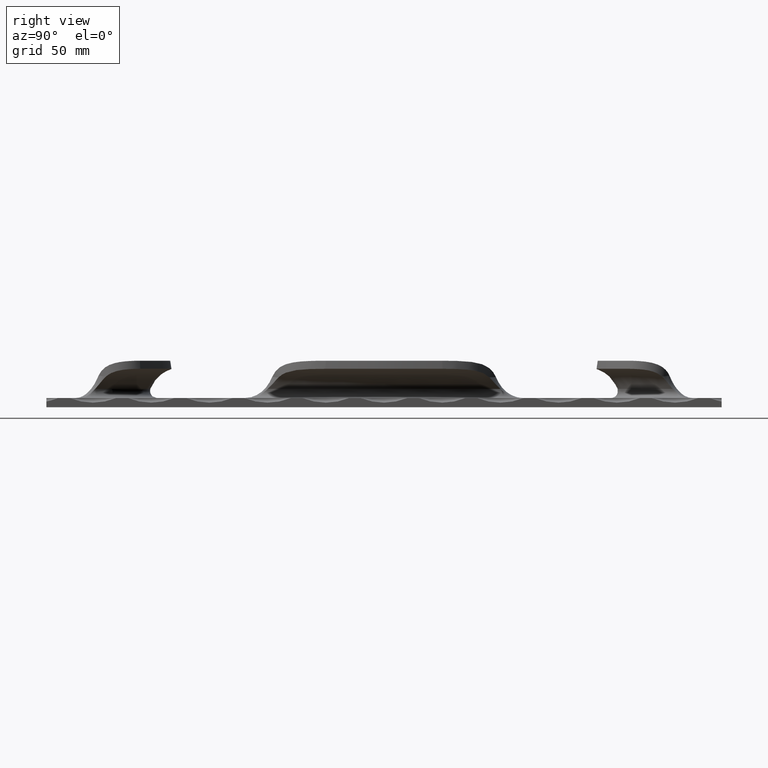
[diagram: clean part render]
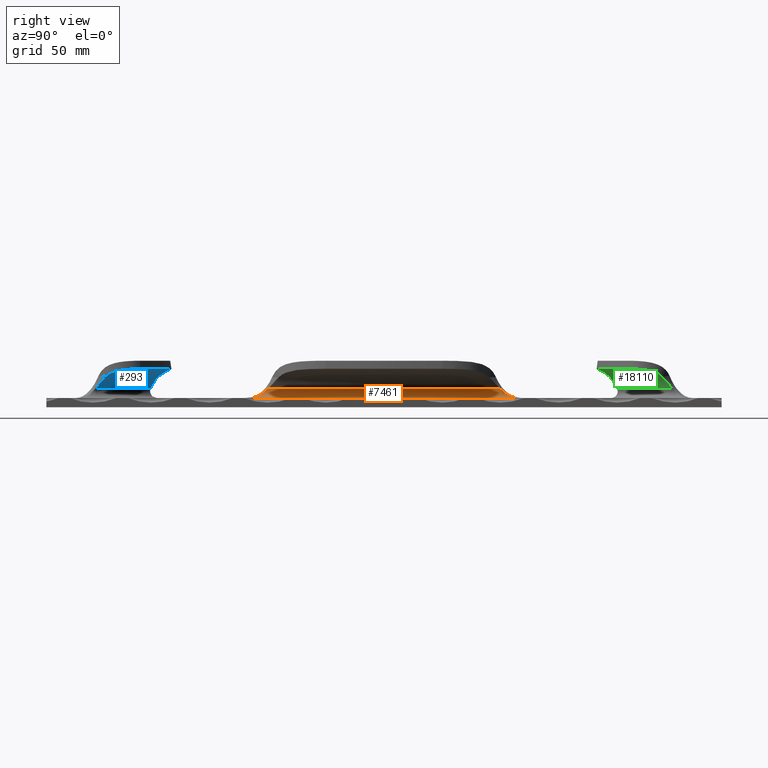
[diagram: same view with three faces highlighted in distinct colors, each labeled with its STEP entity id]
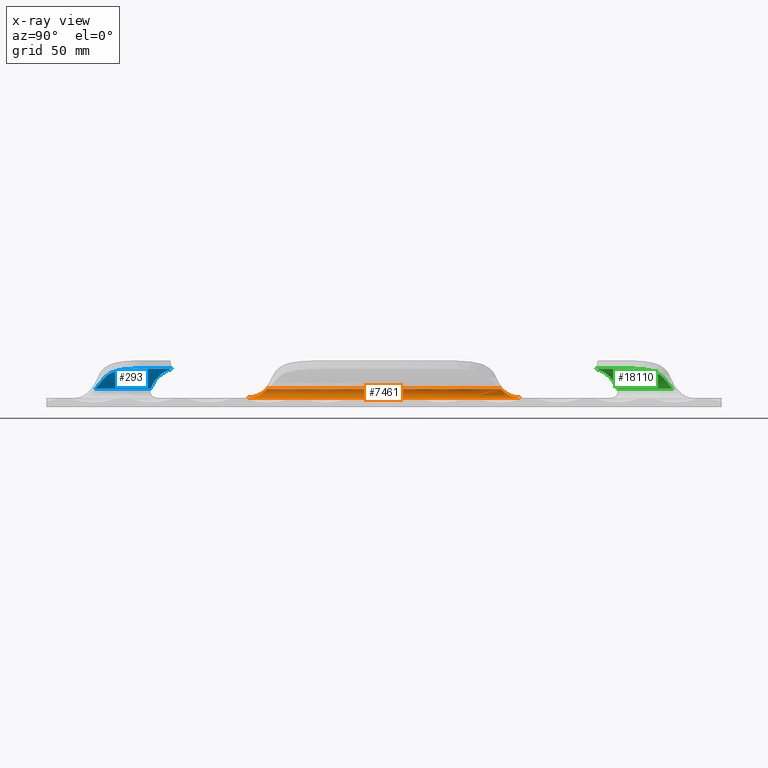
[diagram: x-ray of the same camera — body ghosted, the three highlighted faces saturated]
A machine part, right view with three faces highlighted in distinct colors.
The next image is the same camera in x-ray (body ghosted, the three faces saturated) — at least one of them is partly hidden behind the body in this view.
Their STEP definitions:

[orange] entity #7461 — the highlighted toroidal blend (fillet) surface has major radius 131.064 mm and minor (blend) radius 3 mm.
#127 = DIRECTION ( 'NONE',  ( -1.000000000000000000, 0.0000000000000000000, 0.0000000000000000000 ) ) ;
#1071 = VERTEX_POINT ( 'NONE', #16387 ) ;
#1298 = CARTESIAN_POINT ( 'NONE',  ( -109.9487694565426800, 93.00114658675498400, 6.211068984497527100 ) ) ;
#1388 = CARTESIAN_POINT ( 'NONE',  ( -109.7925697336179700, 203.4821386187641400, 4.000000000000000000 ) ) ;
#1767 = EDGE_CURVE ( 'NONE', #1071, #2663, #2790, .T. ) ;
#2262 = AXIS2_PLACEMENT_3D ( 'NONE', #7316, #13244, #7442 ) ;
#2526 = VERTEX_POINT ( 'NONE', #17365 ) ;
#2663 = VERTEX_POINT ( 'NONE', #6424 ) ;
#2790 = B_SPLINE_CURVE_WITH_KNOTS ( 'NONE', 3,
 ( #1388, #3081, #13195, #11580, #2877, #13012, #15936, #17408, #8757, #14957, #6247, #7567, #17878, #4852, #7693, #6177 ),
 .UNSPECIFIED., .F., .F.,
 ( 4, 2, 2, 2, 2, 2, 2, 4 ),
 ( -2.504480706129122600E-005, 0.001214967937322580000, 0.002454980681706451100, 0.003694993426090322900, 0.004935006170474193400, 0.006175018914858064300, 0.007415031659241937000, 0.009895057148009676200 ),
 .UNSPECIFIED. ) ;
#2863 = CARTESIAN_POINT ( 'NONE',  ( -110.1094335452938300, 91.97655657371902300, 5.540781994726332400 ) ) ;
#2877 = CARTESIAN_POINT ( 'NONE',  ( -110.0165907016635600, 201.4437447620452400, 4.199530309431489500 ) ) ;
#3081 = CARTESIAN_POINT ( 'NONE',  ( -109.8381287916579100, 203.0713192113741500, 4.000000000000026600 ) ) ;
#3957 = FACE_OUTER_BOUND ( 'NONE', #16346, .T. ) ;
#4083 = CARTESIAN_POINT ( 'NONE',  ( -109.9747677572980000, 88.15478835372461200, 4.125203686884558100 ) ) ;
#4192 = EDGE_CURVE ( 'NONE', #1071, #16741, #7061, .T. ) ;
#4304 = ORIENTED_EDGE ( 'NONE', *, *, #4192, .F. ) ;
#4420 = CARTESIAN_POINT ( 'NONE',  ( -110.1554957574202500, 90.88842433289886500, 4.969600187318780700 ) ) ;
#4852 = CARTESIAN_POINT ( 'NONE',  ( -109.6719382895446100, 196.0371663199425400, 6.937085417777591800 ) ) ;
#5765 = CARTESIAN_POINT ( 'NONE',  ( -227.0858352985343900, 145.0000000000001400, 7.933333333333354900 ) ) ;
#5798 = CARTESIAN_POINT ( 'NONE',  ( -108.9911194063887800, 95.07729017309769400, 7.933333333333354900 ) ) ;
#6177 = CARTESIAN_POINT ( 'NONE',  ( -108.9911194063887600, 194.9227098269025200, 7.933333333333354900 ) ) ;
#6247 = CARTESIAN_POINT ( 'NONE',  ( -110.1094242342021500, 198.0233475962338600, 5.540838988976712900 ) ) ;
#6424 = CARTESIAN_POINT ( 'NONE',  ( -108.9911194063887600, 194.9227098269025200, 7.933333333333354900 ) ) ;
#6761 = DIRECTION ( 'NONE',  ( -0.0000000000000000000, -0.0000000000000000000, -1.000000000000000000 ) ) ;
#7061 = CIRCLE ( 'NONE', #12340, 131.0643761069587200 ) ;
#7158 = CARTESIAN_POINT ( 'NONE',  ( -109.9077504274845700, 87.54368926932214400, 4.050220825247094100 ) ) ;
#7316 = CARTESIAN_POINT ( 'NONE',  ( -227.0858352985343900, 145.0000000000001400, 7.000000000000000000 ) ) ;
#7442 = DIRECTION ( 'NONE',  ( -1.000000000000000000, 0.0000000000000000000, 0.0000000000000000000 ) ) ;
#7461 = ADVANCED_FACE ( 'NONE', ( #3957 ), #17301, .F. ) ;
#7567 = CARTESIAN_POINT ( 'NONE',  ( -110.0165039693306100, 197.3347623122780300, 5.976252284737215700 ) ) ;
#7693 = CARTESIAN_POINT ( 'NONE',  ( -109.3918589508757600, 195.4614919107898200, 7.446627380563112000 ) ) ;
#8526 = CARTESIAN_POINT ( 'NONE',  ( -109.8847045615689500, 87.33860395236320100, 4.031361832666789300 ) ) ;
#8547 = EDGE_CURVE ( 'NONE', #2526, #2663, #17040, .T. ) ;
#8618 = CARTESIAN_POINT ( 'NONE',  ( -110.1495541473677100, 90.50764709866699300, 4.802435688702408000 ) ) ;
#8739 = CARTESIAN_POINT ( 'NONE',  ( -110.0165175128554300, 92.66516414711865900, 5.976202181689586700 ) ) ;
#8757 = CARTESIAN_POINT ( 'NONE',  ( -110.1554956483948900, 199.1114428546930500, 4.969661761979696600 ) ) ;
#9849 = CARTESIAN_POINT ( 'NONE',  ( -109.7925697336179700, 86.51786138123610200, 4.000000000000000000 ) ) ;
#10496 = B_SPLINE_CURVE_WITH_KNOTS ( 'NONE', 3,
 ( #5798, #17266, #15787, #1298, #8739, #2863, #14450, #4420, #8618, #11508, #18580, #12898, #4083, #7158, #8526, #18521, #12837, #9849 ),
 .UNSPECIFIED., .F., .F.,
 ( 4, 2, 2, 2, 2, 2, 2, 2, 4 ),
 ( 0.0000000000000000000, 0.002453533319369146100, 0.003680299979053718900, 0.004907066638738292200, 0.006133833298422864500, 0.007360599958107437800, 0.008587366617792011000, 0.009200749947634277700, 0.009814133277476544400 ),
 .UNSPECIFIED. ) ;
#11508 = CARTESIAN_POINT ( 'NONE',  ( -110.1150523291521500, 89.73758304653637200, 4.515296739074883300 ) ) ;
#11580 = CARTESIAN_POINT ( 'NONE',  ( -109.9747910715969300, 201.8449913249013700, 4.125240331586756100 ) ) ;
#12213 = ORIENTED_EDGE ( 'NONE', *, *, #13485, .T. ) ;
#12340 = AXIS2_PLACEMENT_3D ( 'NONE', #13954, #6761, #16905 ) ;
#12837 = CARTESIAN_POINT ( 'NONE',  ( -109.8151059267795100, 86.72107685398785300, 3.999999999999999100 ) ) ;
#12898 = CARTESIAN_POINT ( 'NONE',  ( -110.0165702780110700, 88.55604794249445900, 4.199487309515217400 ) ) ;
#13012 = CARTESIAN_POINT ( 'NONE',  ( -110.0867049740225700, 200.6523689030985300, 4.394578779254891800 ) ) ;
#13195 = CARTESIAN_POINT ( 'NONE',  ( -109.8854392852207600, 202.6597631265535100, 4.025247276625813200 ) ) ;
#13244 = DIRECTION ( 'NONE',  ( -0.0000000000000000000, -0.0000000000000000000, -1.000000000000000000 ) ) ;
#13485 = EDGE_CURVE ( 'NONE', #2526, #16741, #10496, .T. ) ;
#13954 = CARTESIAN_POINT ( 'NONE',  ( -227.0858352985343900, 145.0000000000001400, 4.000000000000000000 ) ) ;
#14450 = CARTESIAN_POINT ( 'NONE',  ( -110.1353287014343700, 91.62166000150260500, 5.338375726194343000 ) ) ;
#14957 = CARTESIAN_POINT ( 'NONE',  ( -110.1353221955563300, 198.3782323479071300, 5.338435092360169800 ) ) ;
#15267 = ORIENTED_EDGE ( 'NONE', *, *, #8547, .F. ) ;
#15787 = CARTESIAN_POINT ( 'NONE',  ( -109.6719536031544600, 93.96280216871602400, 6.937057623420066000 ) ) ;
#15936 = CARTESIAN_POINT ( 'NONE',  ( -110.1150629298878400, 200.2622471973300300, 4.515353277343257000 ) ) ;
#16346 = EDGE_LOOP ( 'NONE', ( #4304, #17638, #15267, #12213 ) ) ;
#16348 = CARTESIAN_POINT ( 'NONE',  ( -109.7925697336179700, 86.51786138123610200, 4.000000000000000000 ) ) ;
#16387 = CARTESIAN_POINT ( 'NONE',  ( -109.7925697336179700, 203.4821386187641400, 4.000000000000000000 ) ) ;
#16741 = VERTEX_POINT ( 'NONE', #16348 ) ;
#16905 = DIRECTION ( 'NONE',  ( 1.000000000000000000, 0.0000000000000000000, 0.0000000000000000000 ) ) ;
#17040 = CIRCLE ( 'NONE', #17393, 128.2132554695795600 ) ;
#17266 = CARTESIAN_POINT ( 'NONE',  ( -109.3918699030165100, 94.53849336439154200, 7.446614078975666300 ) ) ;
#17301 = TOROIDAL_SURFACE ( 'NONE', #2262, 131.0643761069587200, 3.000000000000000000 ) ;
#17365 = CARTESIAN_POINT ( 'NONE',  ( -108.9911194063887800, 95.07729017309769400, 7.933333333333354900 ) ) ;
#17393 = AXIS2_PLACEMENT_3D ( 'NONE', #5765, #18772, #127 ) ;
#17408 = CARTESIAN_POINT ( 'NONE',  ( -110.1495576889203800, 199.4922069809551600, 4.802496861624697500 ) ) ;
#17638 = ORIENTED_EDGE ( 'NONE', *, *, #1767, .T. ) ;
#17878 = CARTESIAN_POINT ( 'NONE',  ( -109.9487544176618700, 196.9987903256580400, 6.211114609197015700 ) ) ;
#18521 = CARTESIAN_POINT ( 'NONE',  ( -109.8385180425515300, 86.92859952523825500, 4.006276569016114800 ) ) ;
#18580 = CARTESIAN_POINT ( 'NONE',  ( -110.0866909047920100, 89.34744908454743500, 4.394525831407012400 ) ) ;
#18772 = DIRECTION ( 'NONE',  ( 0.0000000000000000000, 0.0000000000000000000, 1.000000000000000000 ) ) ;

[blue] entity #293 — the highlighted toroidal blend (fillet) surface has major radius 46.3857 mm and minor (blend) radius 12.6429 mm.
#51 = EDGE_CURVE ( 'NONE', #6866, #10958, #7922, .T. ) ;
#219 = CARTESIAN_POINT ( 'NONE',  ( -69.57580144779841200, 53.20029230492556800, 16.53097345132743000 ) ) ;
#293 = ADVANCED_FACE ( 'NONE', ( #17995 ), #7355, .F. ) ;
#311 = CARTESIAN_POINT ( 'NONE',  ( -50.04706211032828400, 20.96765094726743700, 7.933333333333338900 ) ) ;
#337 = VERTEX_POINT ( 'NONE', #14473 ) ;
#915 = CARTESIAN_POINT ( 'NONE',  ( -83.17493937770716200, 48.64258462113130600, 13.60283776736309300 ) ) ;
#991 = CARTESIAN_POINT ( 'NONE',  ( -48.07933743606933100, 25.80995973320483100, 13.40704125286855800 ) ) ;
#1050 = CARTESIAN_POINT ( 'NONE',  ( -46.41040761441704600, 33.19160774581264000, 16.14653105198405900 ) ) ;
#1105 = CARTESIAN_POINT ( 'NONE',  ( -49.67285186074028000, 22.93573616820915000, 10.22650157274016700 ) ) ;
#1159 = EDGE_CURVE ( 'NONE', #10709, #6866, #10489, .T. ) ;
#1339 = B_SPLINE_CURVE_WITH_KNOTS ( 'NONE', 3,
 ( #12015, #13459, #4819, #6273, #6393, #3607, #9204, #16450, #16643, #9252 ),
 .UNSPECIFIED., .F., .F.,
 ( 4, 2, 2, 2, 4 ),
 ( 9.813077866773594800E-018, 0.001810477296571527500, 0.003620954593143045500, 0.005431431889714562900, 0.007241909186286080700 ),
 .UNSPECIFIED. ) ;
#2369 = DIRECTION ( 'NONE',  ( -0.0000000000000000000, -0.0000000000000000000, -1.000000000000000000 ) ) ;
#2482 = CARTESIAN_POINT ( 'NONE',  ( -48.22294232711761500, 25.57863338140374800, 13.19550975685891300 ) ) ;
#2517 = DIRECTION ( 'NONE',  ( -1.000000000000000000, 9.084885885938548000E-016, 0.0000000000000000000 ) ) ;
#2606 = CARTESIAN_POINT ( 'NONE',  ( -80.56581372242823100, 51.27190710672944400, 15.36577085533863300 ) ) ;
#2690 = ORIENTED_EDGE ( 'NONE', *, *, #6495, .T. ) ;
#2729 = CARTESIAN_POINT ( 'NONE',  ( -80.02470334941216400, 51.65294175252467600, 15.55806195031909500 ) ) ;
#3133 = CARTESIAN_POINT ( 'NONE',  ( -72.95195122044258100, 53.75758902125851100, 16.48189579780615000 ) ) ;
#3607 = CARTESIAN_POINT ( 'NONE',  ( -84.75737973523122500, 46.35786271091344400, 11.11859260317335400 ) ) ;
#4052 = CARTESIAN_POINT ( 'NONE',  ( -49.35103884955104500, 23.67072059037424500, 11.13359664128787000 ) ) ;
#4115 = CARTESIAN_POINT ( 'NONE',  ( -47.17550591960863200, 27.66479030593764000, 14.63723322032107500 ) ) ;
#4167 = CARTESIAN_POINT ( 'NONE',  ( -78.27656893354462400, 52.64100850862776300, 15.99937491120577700 ) ) ;
#4225 = ORIENTED_EDGE ( 'NONE', *, *, #1159, .T. ) ;
#4295 = CARTESIAN_POINT ( 'NONE',  ( -82.82190173376326900, 49.10260221509018700, 13.97709885144938000 ) ) ;
#4324 = CARTESIAN_POINT ( 'NONE',  ( -86.91485732094649600, 44.60811373788979500, 7.933333333333338900 ) ) ;
#4511 = ORIENTED_EDGE ( 'NONE', *, *, #4652, .T. ) ;
#4540 = CARTESIAN_POINT ( 'NONE',  ( -69.57580144779841200, 53.20029230492556800, 16.53097345132743000 ) ) ;
#4652 = EDGE_CURVE ( 'NONE', #7527, #10709, #9801, .T. ) ;
#4670 = CARTESIAN_POINT ( 'NONE',  ( -70.24229732890724200, 53.39065985315976800, 16.52952379543374000 ) ) ;
#4819 = CARTESIAN_POINT ( 'NONE',  ( -86.19649707007724300, 45.01225425068332700, 8.832261809821231300 ) ) ;
#5022 = EDGE_CURVE ( 'NONE', #8576, #337, #1339, .T. ) ;
#5112 = B_SPLINE_CURVE_WITH_KNOTS ( 'NONE', 3,
 ( #16823, #12492, #915, #4295, #14458, #10134, #18552, #14326, #2606, #2729, #15657, #17149, #4167, #18611, #12803, #14259, #12866, #5608, #5858, #3133, #16100, #7496, #14584, #4670, #13300, #219 ),
 .UNSPECIFIED., .F., .F.,
 ( 4, 2, 2, 2, 2, 2, 2, 2, 2, 2, 2, 2, 4 ),
 ( 0.01052027674654058500, 0.01154423747401012500, 0.01256819820147966500, 0.01461611965641872900, 0.01564008038388824800, 0.01666404111135776400, 0.01871196256629681000, 0.02075988402123585300, 0.02178384474870537200, 0.02280780547617489200, 0.02485572693111397900, 0.02587968765858354000, 0.02690364838605310100 ),
 .UNSPECIFIED. ) ;
#5280 = CARTESIAN_POINT ( 'NONE',  ( -82.78054850216793200, 10.48737512970854300, 7.933333333333338900 ) ) ;
#5376 = CARTESIAN_POINT ( 'NONE',  ( -46.53952778708824700, 34.20938533439462500, 16.26476185755298000 ) ) ;
#5432 = CARTESIAN_POINT ( 'NONE',  ( -46.51955817028027000, 30.17105753416807800, 15.55863007296741800 ) ) ;
#5480 = CARTESIAN_POINT ( 'NONE',  ( -48.22294232711761500, 25.57863338140374800, 13.19550975685891300 ) ) ;
#5490 = CARTESIAN_POINT ( 'NONE',  ( -46.44429013946429300, 33.53345639034079500, 16.18953270912517100 ) ) ;
#5547 = CARTESIAN_POINT ( 'NONE',  ( -50.04706211032828400, 20.96765094726743700, 7.933333333333338900 ) ) ;
#5608 = CARTESIAN_POINT ( 'NONE',  ( -74.32897491960196100, 53.68774483560135700, 16.41964692488146200 ) ) ;
#5619 = ORIENTED_EDGE ( 'NONE', *, *, #51, .T. ) ;
#5858 = CARTESIAN_POINT ( 'NONE',  ( -73.98318207756136600, 53.71632241883365600, 16.43733763503777100 ) ) ;
#6273 = CARTESIAN_POINT ( 'NONE',  ( -85.57406345958844400, 45.49240359784813800, 9.749965503353546800 ) ) ;
#6393 = CARTESIAN_POINT ( 'NONE',  ( -85.29152492096389400, 45.76027394241050700, 10.21145581108817200 ) ) ;
#6495 = EDGE_CURVE ( 'NONE', #10958, #8576, #7518, .T. ) ;
#6813 = CARTESIAN_POINT ( 'NONE',  ( -46.63949141345077700, 29.52238169990669200, 15.36709599263983400 ) ) ;
#6866 = VERTEX_POINT ( 'NONE', #11081 ) ;
#7355 = TOROIDAL_SURFACE ( 'NONE', #9525, 46.38573392393114900, 12.64285714285713900 ) ;
#7448 = EDGE_CURVE ( 'NONE', #337, #7527, #5112, .T. ) ;
#7496 = CARTESIAN_POINT ( 'NONE',  ( -71.25270094613041700, 53.59520628108070600, 16.51920503815701100 ) ) ;
#7518 = CIRCLE ( 'NONE', #12711, 34.37029695211929700 ) ;
#7527 = VERTEX_POINT ( 'NONE', #4540 ) ;
#7745 = CARTESIAN_POINT ( 'NONE',  ( -49.47365056492024800, 40.31033923766730000, 16.53097345132743000 ) ) ;
#7922 = B_SPLINE_CURVE_WITH_KNOTS ( 'NONE', 3,
 ( #5480, #8483, #12862, #18549, #4052, #1105, #15594, #18675, #14197, #5547 ),
 .UNSPECIFIED., .F., .F.,
 ( 4, 2, 2, 2, 4 ),
 ( 0.0000000000000000000, 0.001812636428802136900, 0.003625272857604273800, 0.005437909286406410200, 0.007250545715208547500 ),
 .UNSPECIFIED. ) ;
#8303 = CARTESIAN_POINT ( 'NONE',  ( -47.93708715875170900, 26.05715355621497400, 13.60853881984597900 ) ) ;
#8483 = CARTESIAN_POINT ( 'NONE',  ( -48.47737435301201000, 25.16878082065973700, 12.82072874015866600 ) ) ;
#8576 = VERTEX_POINT ( 'NONE', #4324 ) ;
#9001 = AXIS2_PLACEMENT_3D ( 'NONE', #9806, #11136, #18543 ) ;
#9123 = ORIENTED_EDGE ( 'NONE', *, *, #7448, .T. ) ;
#9204 = CARTESIAN_POINT ( 'NONE',  ( -84.50497911269423000, 46.68870204241811500, 11.56547119921420500 ) ) ;
#9252 = CARTESIAN_POINT ( 'NONE',  ( -83.48561673204427800, 48.18985646662392200, 13.19550975685890600 ) ) ;
#9488 = CARTESIAN_POINT ( 'NONE',  ( -49.01095470152856100, 39.79359100827648600, 16.53097345132743000 ) ) ;
#9525 = AXIS2_PLACEMENT_3D ( 'NONE', #12016, #2369, #14019 ) ;
#9754 = CARTESIAN_POINT ( 'NONE',  ( -46.71248208516787100, 29.19981169955503500, 15.26071481503584300 ) ) ;
#9801 = CIRCLE ( 'NONE', #9001, 44.70747855098549900 ) ;
#9806 = CARTESIAN_POINT ( 'NONE',  ( -82.78054850216793200, 10.48737512970854300, 16.53097345132743000 ) ) ;
#9823 = CARTESIAN_POINT ( 'NONE',  ( -47.87315133864221700, 38.08618318541307700, 16.50089670251746900 ) ) ;
#10134 = CARTESIAN_POINT ( 'NONE',  ( -82.02633643054454600, 50.01294231992996200, 14.63784374391941300 ) ) ;
#10489 = B_SPLINE_CURVE_WITH_KNOTS ( 'NONE', 3,
 ( #18361, #9488, #11339, #9823, #14209, #18617, #18428, #16958, #5376, #5490, #1050, #18493, #11281, #11213, #5432, #6813, #9754, #15734, #4115, #18562, #15474, #8303, #991, #2482 ),
 .UNSPECIFIED., .F., .F.,
 ( 4, 2, 2, 2, 2, 2, 2, 2, 2, 2, 2, 4 ),
 ( 0.0000000000000000000, 0.002051340817277762000, 0.004102681634555524000, 0.006154022451833287200, 0.007179692860472158500, 0.008205363269111030600, 0.01025670408638877000, 0.01128237449502764700, 0.01230804490366652400, 0.01435938572094429600, 0.01538505612958318000, 0.01641072653822206500 ),
 .UNSPECIFIED. ) ;
#10709 = VERTEX_POINT ( 'NONE', #7745 ) ;
#10958 = VERTEX_POINT ( 'NONE', #311 ) ;
#11081 = CARTESIAN_POINT ( 'NONE',  ( -48.22294232711761500, 25.57863338140374800, 13.19550975685891300 ) ) ;
#11136 = DIRECTION ( 'NONE',  ( -0.0000000000000000000, -0.0000000000000000000, -1.000000000000000000 ) ) ;
#11213 = CARTESIAN_POINT ( 'NONE',  ( -46.47214900627264500, 30.49881703739042700, 15.64440913139127800 ) ) ;
#11249 = DIRECTION ( 'NONE',  ( 0.0000000000000000000, 0.0000000000000000000, 1.000000000000000000 ) ) ;
#11281 = CARTESIAN_POINT ( 'NONE',  ( -46.36873941096971700, 31.49130889444557700, 15.87677661130064300 ) ) ;
#11339 = CARTESIAN_POINT ( 'NONE',  ( -48.59921171855478400, 39.24483521341676400, 16.52540132585263800 ) ) ;
#12015 = CARTESIAN_POINT ( 'NONE',  ( -86.91485732094649600, 44.60811373788979500, 7.933333333333338900 ) ) ;
#12016 = CARTESIAN_POINT ( 'NONE',  ( -82.78054850216793200, 10.48737512970854300, 4.000000000000001800 ) ) ;
#12492 = CARTESIAN_POINT ( 'NONE',  ( -83.33686649058594800, 48.41454025024128800, 13.40485453801383500 ) ) ;
#12711 = AXIS2_PLACEMENT_3D ( 'NONE', #5280, #11249, #2517 ) ;
#12803 = CARTESIAN_POINT ( 'NONE',  ( -76.34817899109613400, 53.33467156345403700, 16.26884572550486800 ) ) ;
#12862 = CARTESIAN_POINT ( 'NONE',  ( -48.72007344535544600, 24.78356881696410200, 12.41913248388747000 ) ) ;
#12866 = CARTESIAN_POINT ( 'NONE',  ( -75.01040965024790800, 53.60244757812935000, 16.37783166306506300 ) ) ;
#13300 = CARTESIAN_POINT ( 'NONE',  ( -69.90662057659621100, 53.30256541585831800, 16.53097345132743700 ) ) ;
#13459 = CARTESIAN_POINT ( 'NONE',  ( -86.53637243100274600, 44.79995832813227700, 8.376045329513537800 ) ) ;
#14019 = DIRECTION ( 'NONE',  ( -1.000000000000000000, 0.0000000000000000000, 0.0000000000000000000 ) ) ;
#14197 = CARTESIAN_POINT ( 'NONE',  ( -50.03069238224200900, 21.39047015372681000, 8.374800543067483000 ) ) ;
#14209 = CARTESIAN_POINT ( 'NONE',  ( -47.55837655752360100, 37.47513827753537200, 16.48195384317677900 ) ) ;
#14259 = CARTESIAN_POINT ( 'NONE',  ( -75.34753528705478200, 53.54574372973022600, 16.35365973382757300 ) ) ;
#14326 = CARTESIAN_POINT ( 'NONE',  ( -80.82869098061637200, 51.07058698986319500, 15.25909295886567400 ) ) ;
#14458 = CARTESIAN_POINT ( 'NONE',  ( -82.63099390635392200, 49.33402392666383900, 14.15277423988026400 ) ) ;
#14473 = CARTESIAN_POINT ( 'NONE',  ( -83.48561673204427800, 48.18985646662392200, 13.19550975685890600 ) ) ;
#14584 = CARTESIAN_POINT ( 'NONE',  ( -70.91505720902347300, 53.53685751909981100, 16.52363649224899000 ) ) ;
#14660 = EDGE_LOOP ( 'NONE', ( #4225, #5619, #2690, #15079, #9123, #4511 ) ) ;
#15079 = ORIENTED_EDGE ( 'NONE', *, *, #5022, .T. ) ;
#15474 = CARTESIAN_POINT ( 'NONE',  ( -47.66679975454303500, 26.56991113425919700, 13.98198284727118300 ) ) ;
#15594 = CARTESIAN_POINT ( 'NONE',  ( -49.80081106042242600, 22.56294361811489300, 9.759472344476947100 ) ) ;
#15657 = CARTESIAN_POINT ( 'NONE',  ( -79.74582222079676800, 51.83335583906468000, 15.64412103319245000 ) ) ;
#15734 = CARTESIAN_POINT ( 'NONE',  ( -46.96495477579902900, 28.25597851862614700, 14.91002783748695700 ) ) ;
#16100 = CARTESIAN_POINT ( 'NONE',  ( -72.26931576127054800, 53.72703876777576000, 16.50078612304839300 ) ) ;
#16450 = CARTESIAN_POINT ( 'NONE',  ( -84.00198885930632300, 47.40425825270401100, 12.41717311130318700 ) ) ;
#16643 = CARTESIAN_POINT ( 'NONE',  ( -83.75207165928024700, 47.78738248992530700, 12.82051239293691900 ) ) ;
#16823 = CARTESIAN_POINT ( 'NONE',  ( -83.48561673204427800, 48.18985646662392200, 13.19550975685890600 ) ) ;
#16958 = CARTESIAN_POINT ( 'NONE',  ( -46.60093958817681400, 34.54455836029525500, 16.29714278136254200 ) ) ;
#17149 = CARTESIAN_POINT ( 'NONE',  ( -78.88471026114963500, 52.34285783825596600, 15.87713127218576200 ) ) ;
#17995 = FACE_OUTER_BOUND ( 'NONE', #14660, .T. ) ;
#18361 = CARTESIAN_POINT ( 'NONE',  ( -49.47365056492024800, 40.31033923766730000, 16.53097345132743000 ) ) ;
#18428 = CARTESIAN_POINT ( 'NONE',  ( -46.82653385671007100, 35.54142020176499300, 16.38190508727516800 ) ) ;
#18493 = CARTESIAN_POINT ( 'NONE',  ( -46.35132300677985000, 32.16518528305756100, 15.99860555928782600 ) ) ;
#18543 = DIRECTION ( 'NONE',  ( -1.000000000000000000, 0.0000000000000000000, 0.0000000000000000000 ) ) ;
#18549 = CARTESIAN_POINT ( 'NONE',  ( -49.15692770223278500, 24.03455541354989200, 11.57556159278254300 ) ) ;
#18552 = CARTESIAN_POINT ( 'NONE',  ( -81.57663309027135800, 50.45071231926034700, 14.91020309429564600 ) ) ;
#18562 = CARTESIAN_POINT ( 'NONE',  ( -47.53811109946674700, 26.83631865566181700, 14.15496058021304600 ) ) ;
#18611 = CARTESIAN_POINT ( 'NONE',  ( -77.00104889760454800, 53.13957853287544000, 16.19621951317640900 ) ) ;
#18617 = CARTESIAN_POINT ( 'NONE',  ( -47.03178513362645700, 36.19450413823960100, 16.42208931324907800 ) ) ;
#18675 = CARTESIAN_POINT ( 'NONE',  ( -49.97973575265194100, 21.78948925812693500, 8.832562639201500000 ) ) ;

[green] entity #18110 — the highlighted toroidal blend (fillet) surface has major radius 46.3857 mm and minor (blend) radius 12.6429 mm.
#243 = CARTESIAN_POINT ( 'NONE',  ( -83.48561673204427800, 241.8101435333763300, 13.19550975685889100 ) ) ;
#287 = EDGE_CURVE ( 'NONE', #15347, #17535, #17449, .T. ) ;
#336 = ORIENTED_EDGE ( 'NONE', *, *, #4954, .F. ) ;
#429 = DIRECTION ( 'NONE',  ( 0.0000000000000000000, 0.0000000000000000000, 1.000000000000000000 ) ) ;
#749 = CARTESIAN_POINT ( 'NONE',  ( -77.32338043840518100, 236.9862960420838600, 16.14653105198405200 ) ) ;
#867 = CARTESIAN_POINT ( 'NONE',  ( -82.81681968238146400, 240.8911023750496800, 13.98198284727117400 ) ) ;
#1057 = CARTESIAN_POINT ( 'NONE',  ( -49.47365056492022700, 249.6896607623329800, 16.53097345132743000 ) ) ;
#1190 = CARTESIAN_POINT ( 'NONE',  ( -47.94114581739965100, 263.9501194143688800, 13.60283776736306300 ) ) ;
#1257 = CARTESIAN_POINT ( 'NONE',  ( -49.02254067994310600, 250.2159272676624100, 16.52952379543374300 ) ) ;
#1390 = CARTESIAN_POINT ( 'NONE',  ( -85.56783369795404300, 244.5024338213697500, 9.759472344476938200 ) ) ;
#1492 = CARTESIAN_POINT ( 'NONE',  ( -69.57580144779842600, 236.7997076950746900, 16.53097345132743000 ) ) ;
#1621 = TOROIDAL_SURFACE ( 'NONE', #7796, 46.38573392393117000, 12.64285714285713900 ) ;
#1686 = ORIENTED_EDGE ( 'NONE', *, *, #14932, .T. ) ;
#1707 = EDGE_CURVE ( 'NONE', #12665, #11783, #16267, .T. ) ;
#1917 = CARTESIAN_POINT ( 'NONE',  ( -72.95156737606544100, 236.2421743729371100, 16.48195384317676800 ) ) ;
#1961 = CARTESIAN_POINT ( 'NONE',  ( -49.47365056492022700, 249.6896607623329800, 16.53097345132743000 ) ) ;
#2010 = CARTESIAN_POINT ( 'NONE',  ( -49.97953400642645500, 268.2108802710415600, 8.832261809821234900 ) ) ;
#2370 = ORIENTED_EDGE ( 'NONE', *, *, #287, .T. ) ;
#2428 = CARTESIAN_POINT ( 'NONE',  ( -79.74478234637634000, 238.1660191447257400, 15.64440913139127100 ) ) ;
#3159 = DIRECTION ( 'NONE',  ( -1.000000000000000000, 0.0000000000000000000, 0.0000000000000000000 ) ) ;
#3225 = ORIENTED_EDGE ( 'NONE', *, *, #10927, .T. ) ;
#3365 = VERTEX_POINT ( 'NONE', #15314 ) ;
#3877 = CARTESIAN_POINT ( 'NONE',  ( -78.88597126848371500, 237.6579077758208300, 15.87677661130062700 ) ) ;
#4117 = CARTESIAN_POINT ( 'NONE',  ( -46.64036297242340400, 260.4818579754743800, 15.36577085533861700 ) ) ;
#4181 = CARTESIAN_POINT ( 'NONE',  ( -47.16563491293903400, 253.4796943828012600, 16.43733763503776800 ) ) ;
#4954 = EDGE_CURVE ( 'NONE', #15347, #11783, #16108, .T. ) ;
#4975 = CARTESIAN_POINT ( 'NONE',  ( -49.35716345088897600, 266.3415553331836900, 11.11859260317334900 ) ) ;
#5072 = CARTESIAN_POINT ( 'NONE',  ( -69.57580144779842600, 236.7997076950746900, 16.53097345132743000 ) ) ;
#5253 = CARTESIAN_POINT ( 'NONE',  ( -76.34456302736342100, 236.6789530502134400, 16.26476185755297300 ) ) ;
#5449 = AXIS2_PLACEMENT_3D ( 'NONE', #18583, #5587, #7031 ) ;
#5587 = DIRECTION ( 'NONE',  ( 0.0000000000000000000, 0.0000000000000000000, 1.000000000000000000 ) ) ;
#6070 = CARTESIAN_POINT ( 'NONE',  ( -86.91485732094651000, 245.3918862621104600, 7.933333333333340700 ) ) ;
#6180 = CARTESIAN_POINT ( 'NONE',  ( -50.04706211032827000, 269.0323490527327400, 7.933333333333340700 ) ) ;
#6239 = EDGE_LOOP ( 'NONE', ( #2370, #9213, #3225, #1686, #14286, #336 ) ) ;
#6577 = CARTESIAN_POINT ( 'NONE',  ( -75.01427306940878700, 236.3839649154431900, 16.38190508727516500 ) ) ;
#6701 = CARTESIAN_POINT ( 'NONE',  ( -78.28083061946459500, 237.3608934442333700, 15.99860555928781000 ) ) ;
#6891 = CARTESIAN_POINT ( 'NONE',  ( -47.17506139873626800, 262.3344821975505900, 14.63784374391938500 ) ) ;
#7008 = CARTESIAN_POINT ( 'NONE',  ( -47.67040034714591500, 263.4373342204230000, 13.97709885144935700 ) ) ;
#7031 = DIRECTION ( 'NONE',  ( 1.000000000000000000, 0.0000000000000000000, 0.0000000000000000000 ) ) ;
#7093 = FACE_OUTER_BOUND ( 'NONE', #6239, .T. ) ;
#7134 = CARTESIAN_POINT ( 'NONE',  ( -46.96486961680776800, 261.7431319786646200, 14.91020309429562100 ) ) ;
#7692 = AXIS2_PLACEMENT_3D ( 'NONE', #14667, #429, #3159 ) ;
#7695 = CARTESIAN_POINT ( 'NONE',  ( -48.22294232711761500, 264.4213666185964900, 13.19550975685888800 ) ) ;
#7796 = AXIS2_PLACEMENT_3D ( 'NONE', #10497, #12165, #16347 ) ;
#7921 = CARTESIAN_POINT ( 'NONE',  ( -70.23848172393806500, 236.5948393319880000, 16.53097345132743000 ) ) ;
#8179 = CARTESIAN_POINT ( 'NONE',  ( -81.57740592186066000, 239.5497362322512900, 14.91002783748694500 ) ) ;
#8568 = CARTESIAN_POINT ( 'NONE',  ( -47.55843141533634400, 252.5253092818833200, 16.48189579780613600 ) ) ;
#9115 = CARTESIAN_POINT ( 'NONE',  ( -50.03064622521107900, 268.6083376408146800, 8.376045329513537800 ) ) ;
#9213 = ORIENTED_EDGE ( 'NONE', *, *, #17731, .T. ) ;
#9253 = CARTESIAN_POINT ( 'NONE',  ( -74.33511632050603200, 236.2979833756989200, 16.42208931324907100 ) ) ;
#9639 = CARTESIAN_POINT ( 'NONE',  ( -83.33531271713643200, 241.5831128110650900, 13.40704125286854500 ) ) ;
#9702 = CARTESIAN_POINT ( 'NONE',  ( -48.22294232711761500, 264.4213666185964900, 13.19550975685888800 ) ) ;
#9826 = CARTESIAN_POINT ( 'NONE',  ( -47.04731770980564700, 253.8058698069407100, 16.41964692488145900 ) ) ;
#9889 = CARTESIAN_POINT ( 'NONE',  ( -46.51987252701763300, 259.8311123341923100, 15.55806195031907900 ) ) ;
#10003 = CARTESIAN_POINT ( 'NONE',  ( -48.41504380406442500, 251.0488151692857700, 16.51920503815702200 ) ) ;
#10497 = CARTESIAN_POINT ( 'NONE',  ( -82.78054850216793200, 279.5126248702916900, 4.000000000000001800 ) ) ;
#10649 = CARTESIAN_POINT ( 'NONE',  ( -86.53743662818988000, 245.2005810869905500, 8.374800543067479500 ) ) ;
#10663 = CARTESIAN_POINT ( 'NONE',  ( -72.26491443771396900, 236.2732675317483300, 16.50089670251746900 ) ) ;
#10764 = CARTESIAN_POINT ( 'NONE',  ( -49.80290325434541600, 267.4448720645135000, 9.749965503353543300 ) ) ;
#10927 = EDGE_CURVE ( 'NONE', #15533, #3365, #13149, .T. ) ;
#11036 = CARTESIAN_POINT ( 'NONE',  ( -76.01433807444270500, 236.5949063544257200, 16.29714278136254900 ) ) ;
#11100 = CARTESIAN_POINT ( 'NONE',  ( -83.48561673204427800, 241.8101435333763300, 13.19550975685889100 ) ) ;
#11401 = CARTESIAN_POINT ( 'NONE',  ( -46.35137280503685300, 257.8301481430711400, 15.99937491120576500 ) ) ;
#11470 = CARTESIAN_POINT ( 'NONE',  ( -49.24266641172155100, 249.9476286017422800, 16.53097345132743000 ) ) ;
#11783 = VERTEX_POINT ( 'NONE', #1961 ) ;
#11953 = CARTESIAN_POINT ( 'NONE',  ( -83.75191793344433200, 242.2123853107715400, 12.82072874015864800 ) ) ;
#12064 = CARTESIAN_POINT ( 'NONE',  ( -84.00072196535953100, 242.5936826893597800, 12.41913248388745700 ) ) ;
#12165 = DIRECTION ( 'NONE',  ( 0.0000000000000000000, 0.0000000000000000000, 1.000000000000000000 ) ) ;
#12334 = CARTESIAN_POINT ( 'NONE',  ( -80.56232444719039200, 238.7255317566691100, 15.36709599263983100 ) ) ;
#12510 = CARTESIAN_POINT ( 'NONE',  ( -82.02681208356207800, 239.9877652139479100, 14.63723322032106600 ) ) ;
#12665 = VERTEX_POINT ( 'NONE', #9702 ) ;
#12814 = CARTESIAN_POINT ( 'NONE',  ( -46.75135407332346200, 254.7907733870409300, 16.35365973382755600 ) ) ;
#13149 = CIRCLE ( 'NONE', #7692, 34.37029695211932500 ) ;
#13380 = CARTESIAN_POINT ( 'NONE',  ( -85.28243905831313000, 244.2305924303835000, 10.22650157274015800 ) ) ;
#13443 = CARTESIAN_POINT ( 'NONE',  ( -84.74877917067742300, 243.6314490090521500, 11.13359664128785600 ) ) ;
#13798 = B_SPLINE_CURVE_WITH_KNOTS ( 'NONE', 3,
 ( #6180, #9115, #2010, #10764, #16430, #4975, #14895, #16545, #15140, #7695 ),
 .UNSPECIFIED., .F., .F.,
 ( 4, 2, 2, 2, 4 ),
 ( 3.469446951953614200E-018, 0.001810477296571508700, 0.003620954593143013900, 0.005431431889714519500, 0.007241909186286024300 ),
 .UNSPECIFIED. ) ;
#13913 = B_SPLINE_CURVE_WITH_KNOTS ( 'NONE', 3,
 ( #243, #11953, #12064, #17774, #13443, #13380, #1390, #17892, #10649, #6070 ),
 .UNSPECIFIED., .F., .F.,
 ( 4, 2, 2, 2, 4 ),
 ( 1.734723475976807100E-018, 0.001812636428802132500, 0.003625272857604263300, 0.005437909286406394600, 0.007250545715208524900 ),
 .UNSPECIFIED. ) ;
#14084 = CARTESIAN_POINT ( 'NONE',  ( -47.53974763966770900, 263.1672755653449900, 14.15277423988023600 ) ) ;
#14147 = CARTESIAN_POINT ( 'NONE',  ( -46.36856981043379700, 258.5072256567945000, 15.87713127218574800 ) ) ;
#14286 = ORIENTED_EDGE ( 'NONE', *, *, #1707, .T. ) ;
#14342 = CARTESIAN_POINT ( 'NONE',  ( -48.08082195707131500, 264.1924316117224400, 13.40485453801381300 ) ) ;
#14667 = CARTESIAN_POINT ( 'NONE',  ( -82.78054850216793200, 279.5126248702916900, 7.933333333333340700 ) ) ;
#14895 = CARTESIAN_POINT ( 'NONE',  ( -49.16182055398961400, 265.9741292995954000, 11.56547119921417600 ) ) ;
#14932 = EDGE_CURVE ( 'NONE', #3365, #12665, #13798, .T. ) ;
#15140 = CARTESIAN_POINT ( 'NONE',  ( -48.47752122721181700, 264.8314557720677800, 12.82051239293687700 ) ) ;
#15314 = CARTESIAN_POINT ( 'NONE',  ( -50.04706211032827000, 269.0323490527327400, 7.933333333333340700 ) ) ;
#15347 = VERTEX_POINT ( 'NONE', #1492 ) ;
#15355 = CARTESIAN_POINT ( 'NONE',  ( -76.99857585828607400, 236.8744456688035600, 16.18953270912516000 ) ) ;
#15426 = CARTESIAN_POINT ( 'NONE',  ( -83.48561673204427800, 241.8101435333763300, 13.19550975685889100 ) ) ;
#15533 = VERTEX_POINT ( 'NONE', #18257 ) ;
#15540 = CARTESIAN_POINT ( 'NONE',  ( -48.22294232711761500, 264.4213666185964900, 13.19550975685888800 ) ) ;
#15737 = CARTESIAN_POINT ( 'NONE',  ( -46.43051325371716600, 256.4629392268679500, 16.19621951317639500 ) ) ;
#16108 = CIRCLE ( 'NONE', #5449, 44.70747855098551300 ) ;
#16267 = B_SPLINE_CURVE_WITH_KNOTS ( 'NONE', 3,
 ( #15540, #14342, #1190, #7008, #14084, #6891, #7134, #17025, #4117, #9889, #17161, #14147, #11401, #15737, #17284, #12814, #18495, #9826, #4181, #8568, #18691, #10003, #18756, #1257, #11470, #1057 ),
 .UNSPECIFIED., .F., .F.,
 ( 4, 2, 2, 2, 2, 2, 2, 2, 2, 2, 2, 2, 4 ),
 ( 0.01052027674654055500, 0.01154423747401011300, 0.01256819820147967100, 0.01461611965641878300, 0.01564008038388826200, 0.01666404111135774000, 0.01871196256629670300, 0.02075988402123566500, 0.02178384474870522600, 0.02280780547617478800, 0.02485572693111391700, 0.02587968765858347400, 0.02690364838605303200 ),
 .UNSPECIFIED. ) ;
#16347 = DIRECTION ( 'NONE',  ( 1.000000000000000000, 0.0000000000000000000, 0.0000000000000000000 ) ) ;
#16430 = CARTESIAN_POINT ( 'NONE',  ( -49.67736111974350900, 267.0763320805991700, 10.21145581108817900 ) ) ;
#16545 = CARTESIAN_POINT ( 'NONE',  ( -48.72141605042624200, 265.2184416932903400, 12.41717311130315300 ) ) ;
#16841 = CARTESIAN_POINT ( 'NONE',  ( -80.02286257898781200, 238.3458671500391400, 15.55863007296741600 ) ) ;
#16972 = CARTESIAN_POINT ( 'NONE',  ( -83.17002336542603300, 241.3506921627946400, 13.60853881984596600 ) ) ;
#17025 = CARTESIAN_POINT ( 'NONE',  ( -46.71362934774801100, 260.8047608719841200, 15.25909295886565400 ) ) ;
#17161 = CARTESIAN_POINT ( 'NONE',  ( -46.47228310528023300, 259.5023887824673900, 15.64412103319243600 ) ) ;
#17284 = CARTESIAN_POINT ( 'NONE',  ( -46.52563713546077700, 255.7882156890194900, 16.26884572550486000 ) ) ;
#17449 = B_SPLINE_CURVE_WITH_KNOTS ( 'NONE', 3,
 ( #5072, #7921, #18055, #10663, #1917, #9253, #6577, #11036, #5253, #15355, #749, #6701, #3877, #2428, #16841, #12334, #18438, #8179, #12510, #18309, #867, #16972, #9639, #11100 ),
 .UNSPECIFIED., .F., .F.,
 ( 4, 2, 2, 2, 2, 2, 2, 2, 2, 2, 2, 4 ),
 ( 0.0000000000000000000, 0.002051340817277743800, 0.004102681634555487500, 0.006154022451833230000, 0.007179692860472111600, 0.008205363269110992400, 0.01025670408638878300, 0.01128237449502766100, 0.01230804490366653600, 0.01435938572094432200, 0.01538505612958319100, 0.01641072653822205400 ),
 .UNSPECIFIED. ) ;
#17535 = VERTEX_POINT ( 'NONE', #15426 ) ;
#17731 = EDGE_CURVE ( 'NONE', #17535, #15533, #13913, .T. ) ;
#17774 = CARTESIAN_POINT ( 'NONE',  ( -84.49912821315537300, 243.3032275663083800, 11.57556159278253500 ) ) ;
#17892 = CARTESIAN_POINT ( 'NONE',  ( -86.19607706585148300, 244.9877749005775600, 8.832562639201496400 ) ) ;
#18055 = CARTESIAN_POINT ( 'NONE',  ( -70.90898898587735700, 236.4496318318133800, 16.52540132585263100 ) ) ;
#18110 = ADVANCED_FACE ( 'NONE', ( #7093 ), #1621, .F. ) ;
#18257 = CARTESIAN_POINT ( 'NONE',  ( -86.91485732094651000, 245.3918862621104600, 7.933333333333340700 ) ) ;
#18309 = CARTESIAN_POINT ( 'NONE',  ( -82.62841041125167900, 240.6629890611954200, 14.15496058021303400 ) ) ;
#18438 = CARTESIAN_POINT ( 'NONE',  ( -80.82501421684475000, 238.9264624118801200, 15.26071481503583400 ) ) ;
#18495 = CARTESIAN_POINT ( 'NONE',  ( -46.84049404093944000, 254.4607384076993500, 16.37783166306506300 ) ) ;
#18583 = CARTESIAN_POINT ( 'NONE',  ( -82.78054850216793200, 279.5126248702916900, 16.53097345132743000 ) ) ;
#18691 = CARTESIAN_POINT ( 'NONE',  ( -47.87103645017136700, 251.9176888573561000, 16.50078612304839600 ) ) ;
#18756 = CARTESIAN_POINT ( 'NONE',  ( -48.60895790644310900, 250.7663170416267100, 16.52363649224899700 ) ) ;